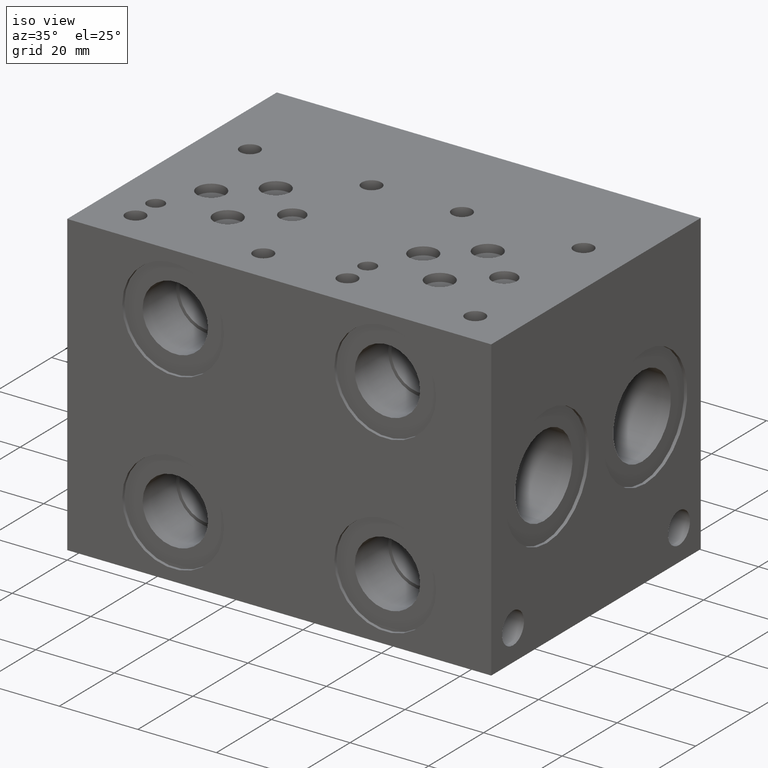
[diagram: clean part render]
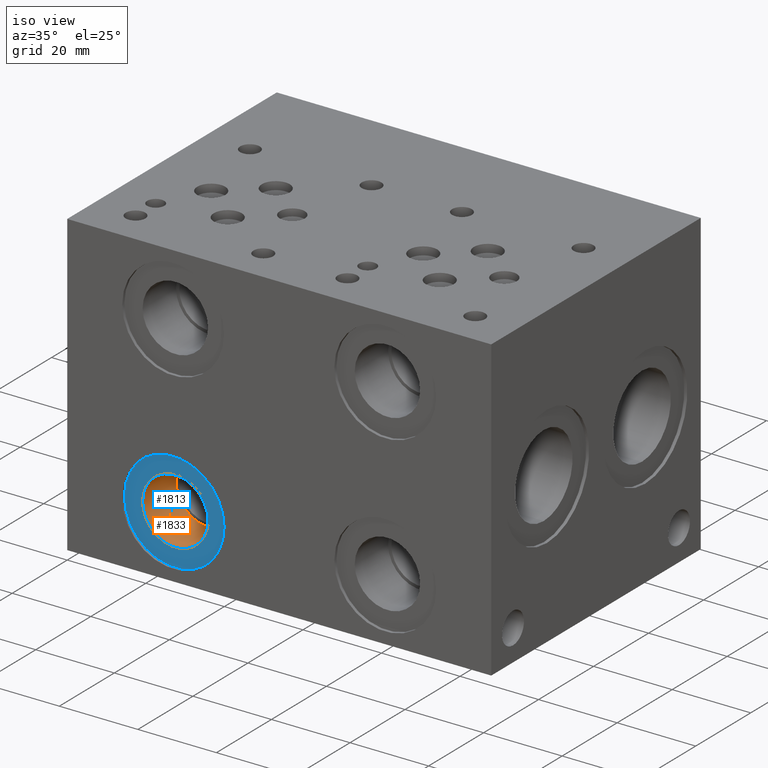
[diagram: same view with the hole feature highlighted: cylindrical wall and planar end face, labeled with their STEP entity ids]
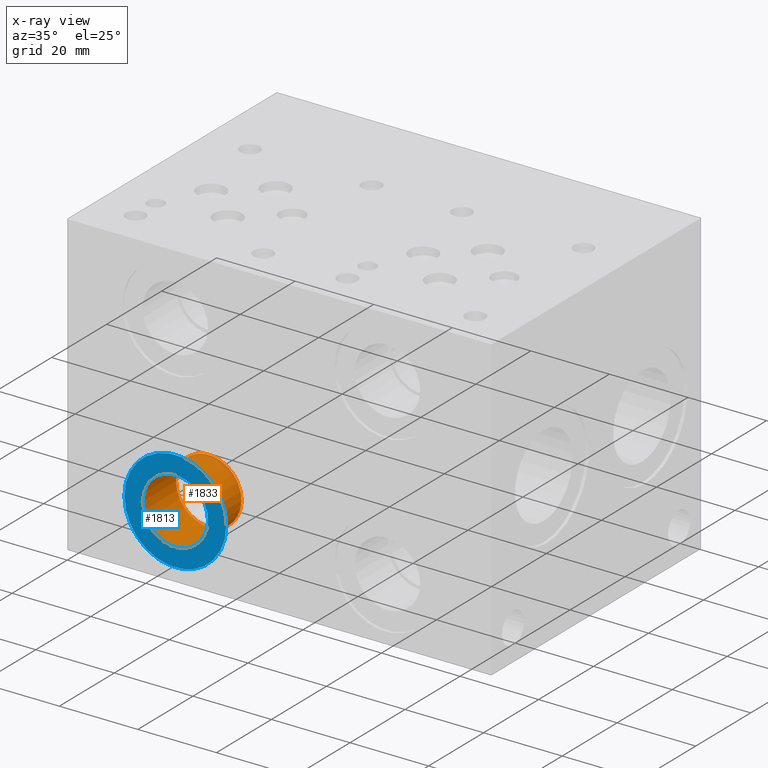
[diagram: x-ray of the same camera — body ghosted, the hole faces saturated]
A machine part, iso view. The highlighted faces form one hole feature of diameter 16.6624 mm: the cylindrical wall (entity #1833, orange) and its adjacent planar end face (entity #1813, blue) — they share a circular edge in the B-rep.
The next image is the same camera in x-ray (body ghosted, the hole faces saturated) — the bore reads through the body.
Wall:
#1802=CARTESIAN_POINT('',(1.390000000000000,0.031000000000000,0.625000000000000));
#1803=VERTEX_POINT('',#1802);
#1804=CARTESIAN_POINT('',(1.062000000000000,0.031000000000000,0.625000000000000));
#1805=DIRECTION('',(0.0,1.0,0.0));
#1806=DIRECTION('',(-1.0,0.0,0.0));
#1807=AXIS2_PLACEMENT_3D('',#1804,#1805,#1806);
#1808=CIRCLE('',#1807,0.328000000000000);
#1809=EDGE_CURVE('',#1803,#1803,#1808,.T.);
#1814=CARTESIAN_POINT('',(1.062000000000000,0.031000000000000,0.625000000000000));
#1815=DIRECTION('',(0.0,1.0,0.0));
#1816=DIRECTION('',(-1.0,0.0,0.0));
#1817=AXIS2_PLACEMENT_3D('',#1814,#1815,#1816);
#1818=CYLINDRICAL_SURFACE('',#1817,0.328000000000000);
#1819=ORIENTED_EDGE('',*,*,#1809,.F.);
#1820=EDGE_LOOP('',(#1819));
#1821=FACE_OUTER_BOUND('',#1820,.T.);
#1822=CARTESIAN_POINT('',(1.390000000000000,0.510000000000000,0.625000000000000));
#1823=VERTEX_POINT('',#1822);
#1824=CARTESIAN_POINT('',(1.062000000000000,0.510000000000000,0.625000000000000));
#1825=DIRECTION('',(0.0,1.0,0.0));
#1826=DIRECTION('',(-1.0,0.0,0.0));
#1827=AXIS2_PLACEMENT_3D('',#1824,#1825,#1826);
#1828=CIRCLE('',#1827,0.328000000000000);
#1829=EDGE_CURVE('',#1823,#1823,#1828,.T.);
#1830=ORIENTED_EDGE('',*,*,#1829,.T.);
#1831=EDGE_LOOP('',(#1830));
#1832=FACE_BOUND('',#1831,.T.);
#1833=ADVANCED_FACE('',(#1821,#1832),#1818,.F.);
End face:
#1782=CARTESIAN_POINT('',(1.572500000000000,0.031000000000000,0.625000000000000));
#1783=VERTEX_POINT('',#1782);
#1784=CARTESIAN_POINT('',(1.062000000000000,0.031000000000000,0.625000000000000));
#1785=DIRECTION('',(0.0,1.0,0.0));
#1786=DIRECTION('',(-1.0,0.0,0.0));
#1787=AXIS2_PLACEMENT_3D('',#1784,#1785,#1786);
#1788=CIRCLE('',#1787,0.510500000000000);
#1789=EDGE_CURVE('',#1783,#1783,#1788,.T.);
#1794=CARTESIAN_POINT('',(1.062000000000000,0.031000000000000,0.625000000000000));
#1795=DIRECTION('',(0.0,1.0,0.0));
#1796=DIRECTION('',(0.0,0.0,1.0));
#1797=AXIS2_PLACEMENT_3D('',#1794,#1795,#1796);
#1798=PLANE('',#1797);
#1799=ORIENTED_EDGE('',*,*,#1789,.F.);
#1800=EDGE_LOOP('',(#1799));
#1801=FACE_OUTER_BOUND('',#1800,.T.);
#1802=CARTESIAN_POINT('',(1.390000000000000,0.031000000000000,0.625000000000000));
#1803=VERTEX_POINT('',#1802);
#1804=CARTESIAN_POINT('',(1.062000000000000,0.031000000000000,0.625000000000000));
#1805=DIRECTION('',(0.0,1.0,0.0));
#1806=DIRECTION('',(-1.0,0.0,0.0));
#1807=AXIS2_PLACEMENT_3D('',#1804,#1805,#1806);
#1808=CIRCLE('',#1807,0.328000000000000);
#1809=EDGE_CURVE('',#1803,#1803,#1808,.T.);
#1810=ORIENTED_EDGE('',*,*,#1809,.T.);
#1811=EDGE_LOOP('',(#1810));
#1812=FACE_BOUND('',#1811,.T.);
#1813=ADVANCED_FACE('',(#1801,#1812),#1798,.F.);